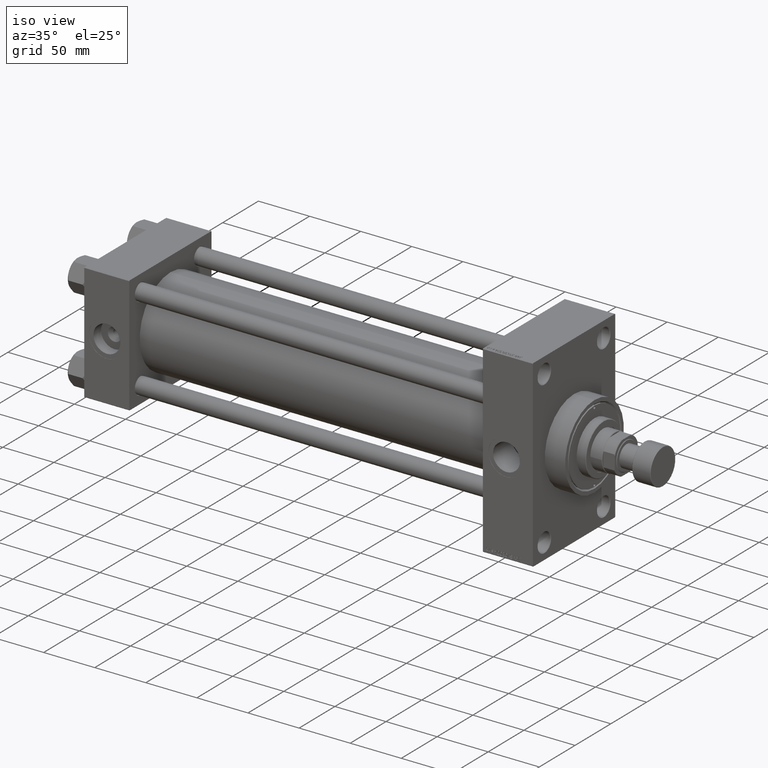
[diagram: clean part render]
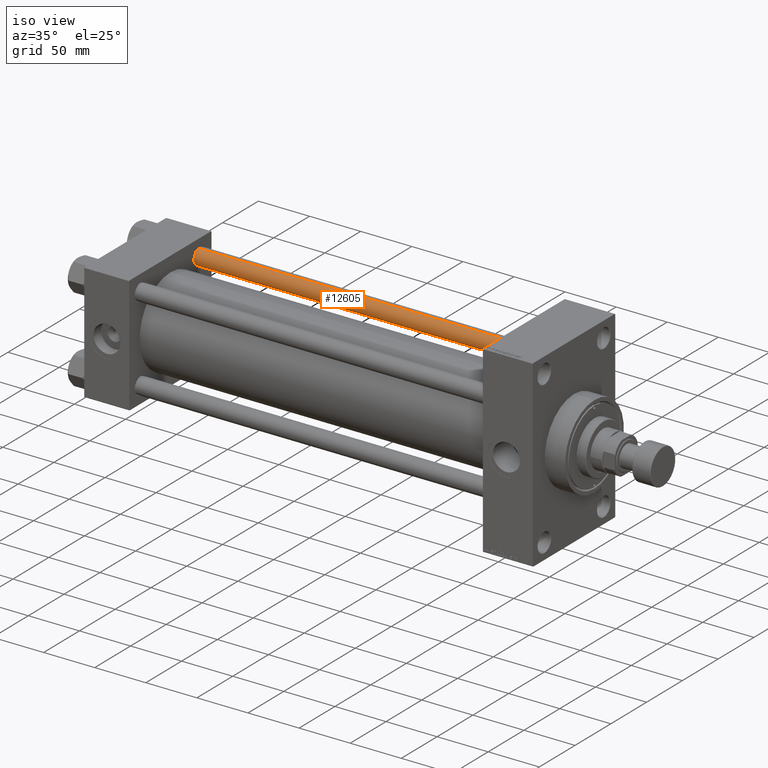
[diagram: same view with one face highlighted and labeled with its STEP entity id]
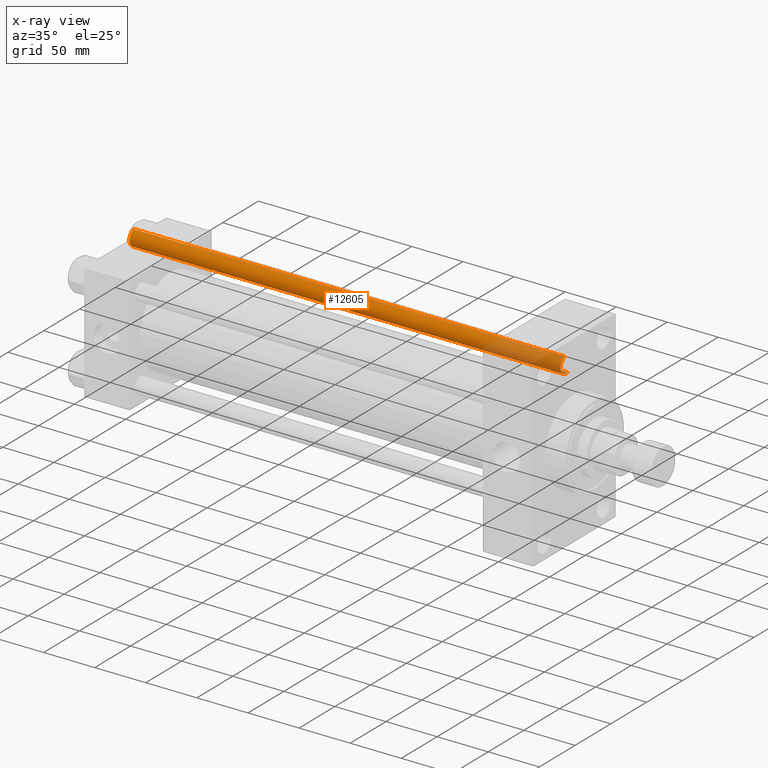
[diagram: x-ray of the same camera — body ghosted, the highlighted face saturated]
A machine part, iso view. The second image highlights one B-rep face of the part: STEP entity #12605.
The next image is the same camera in x-ray: the body ghosted, the highlighted face saturated — about 17% of this face is hidden behind the body in this view.
In plain terms, the highlighted cylindrical surface (edge-blend (fillet) strip) has radius 8 mm, axis along (-1, -0, 0).
Its self-contained STEP definition (entity closure, byte-faithful):
#1167 = VECTOR ( 'NONE', #35309, 1000.000000000000000 ) ;
#1925 = ORIENTED_EDGE ( 'NONE', *, *, #46063, .T. ) ;
#1935 = LINE ( 'NONE', #47614, #15287 ) ;
#3853 = DIRECTION ( 'NONE',  ( 1.000000000000000000, 0.000000000000000000, 0.000000000000000000 ) ) ;
#3992 = AXIS2_PLACEMENT_3D ( 'NONE', #14853, #33664, #3853 ) ;
#4227 = CARTESIAN_POINT ( 'NONE',  ( 8.000000000000000000, 9.797174393178823685E-16, 0.5000000000003890221 ) ) ;
#8918 = LINE ( 'NONE', #23814, #1167 ) ;
#8975 = CARTESIAN_POINT ( 'NONE',  ( -8.000000000000000000, 0.000000000000000000, 422.5000000000002842 ) ) ;
#9417 = EDGE_CURVE ( 'NONE', #14346, #30387, #15695, .T. ) ;
#10087 = CIRCLE ( 'NONE', #32670, 8.000000000000000000 ) ;
#10748 = CARTESIAN_POINT ( 'NONE',  ( -8.000000000000000000, 0.000000000000000000, 0.5000000000003890221 ) ) ;
#11842 = DIRECTION ( 'NONE',  ( 1.000000000000000000, 0.000000000000000000, 0.000000000000000000 ) ) ;
#12605 = ADVANCED_FACE ( 'NONE', ( #30843 ), #35023, .T. ) ;
#14156 = VERTEX_POINT ( 'NONE', #4227 ) ;
#14346 = VERTEX_POINT ( 'NONE', #39415 ) ;
#14853 = CARTESIAN_POINT ( 'NONE',  ( 0.000000000000000000, 0.000000000000000000, 422.5000000000002842 ) ) ;
#15287 = VECTOR ( 'NONE', #21215, 1000.000000000000000 ) ;
#15695 = CIRCLE ( 'NONE', #3992, 8.000000000000000000 ) ;
#21215 = DIRECTION ( 'NONE',  ( -0.000000000000000000, -0.000000000000000000, -1.000000000000000000 ) ) ;
#22253 = EDGE_CURVE ( 'NONE', #14346, #14156, #8918, .T. ) ;
#23272 = CARTESIAN_POINT ( 'NONE',  ( 0.000000000000000000, 0.000000000000000000, 423.0000000000000000 ) ) ;
#23814 = CARTESIAN_POINT ( 'NONE',  ( 8.000000000000000000, 9.797174393178823685E-16, 423.0000000000000000 ) ) ;
#24389 = VERTEX_POINT ( 'NONE', #10748 ) ;
#26941 = DIRECTION ( 'NONE',  ( -1.000000000000000000, 0.000000000000000000, 0.000000000000000000 ) ) ;
#28035 = ORIENTED_EDGE ( 'NONE', *, *, #9417, .T. ) ;
#30168 = CARTESIAN_POINT ( 'NONE',  ( 0.000000000000000000, 0.000000000000000000, 0.5000000000003890221 ) ) ;
#30387 = VERTEX_POINT ( 'NONE', #8975 ) ;
#30445 = ORIENTED_EDGE ( 'NONE', *, *, #30703, .T. ) ;
#30595 = DIRECTION ( 'NONE',  ( -0.000000000000000000, -0.000000000000000000, -1.000000000000000000 ) ) ;
#30703 = EDGE_CURVE ( 'NONE', #24389, #14156, #10087, .T. ) ;
#30843 = FACE_OUTER_BOUND ( 'NONE', #34395, .T. ) ;
#32670 = AXIS2_PLACEMENT_3D ( 'NONE', #30168, #34836, #11842 ) ;
#33664 = DIRECTION ( 'NONE',  ( 0.000000000000000000, 0.000000000000000000, -1.000000000000000000 ) ) ;
#34395 = EDGE_LOOP ( 'NONE', ( #38544, #28035, #1925, #30445 ) ) ;
#34836 = DIRECTION ( 'NONE',  ( -0.000000000000000000, -0.000000000000000000, 1.000000000000000000 ) ) ;
#35023 = CYLINDRICAL_SURFACE ( 'NONE', #35998, 8.000000000000000000 ) ;
#35309 = DIRECTION ( 'NONE',  ( -0.000000000000000000, -0.000000000000000000, -1.000000000000000000 ) ) ;
#35998 = AXIS2_PLACEMENT_3D ( 'NONE', #23272, #30595, #26941 ) ;
#38544 = ORIENTED_EDGE ( 'NONE', *, *, #22253, .F. ) ;
#39415 = CARTESIAN_POINT ( 'NONE',  ( 8.000000000000000000, 9.797174393178823685E-16, 422.5000000000002842 ) ) ;
#46063 = EDGE_CURVE ( 'NONE', #30387, #24389, #1935, .T. ) ;
#47614 = CARTESIAN_POINT ( 'NONE',  ( -8.000000000000000000, 0.000000000000000000, 423.0000000000000000 ) ) ;